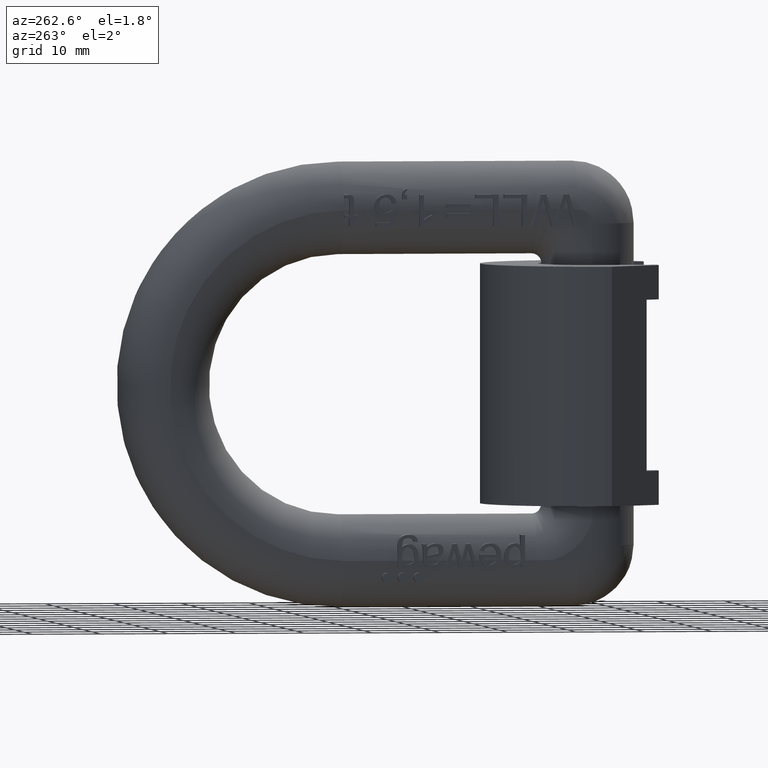
[diagram: clean part render]
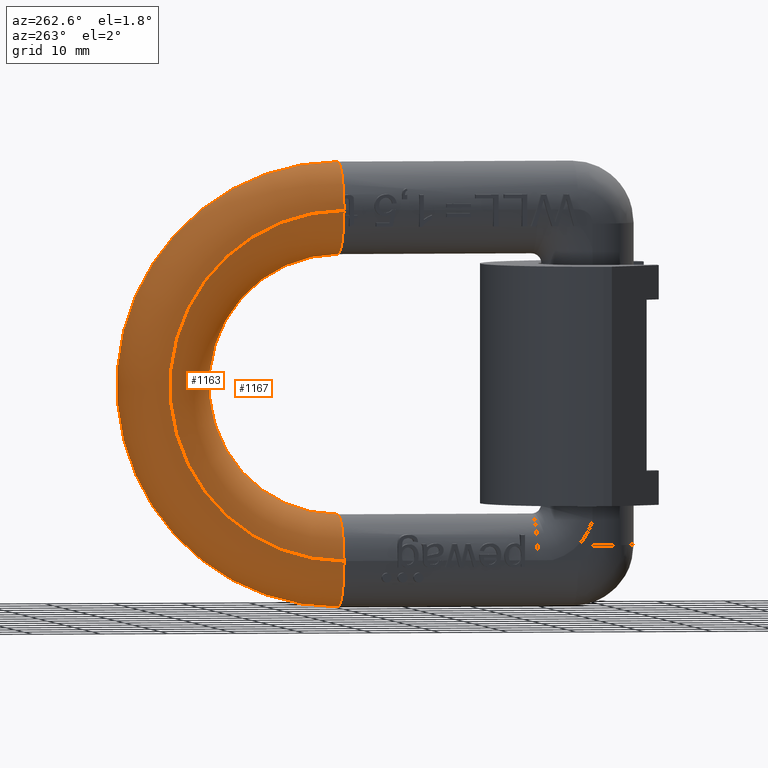
[diagram: same view with one multi-face feature highlighted, each face labeled with its STEP entity id]
A machine part, auxiliary view. The highlighted faces form ONE feature: a constant-radius fillet chain: 2 tangent blend faces with common blend radius 6.9 mm. The faces share edges in the B-rep.
Their STEP definitions:
[1] entity #1163 (Torus):
#226=TOROIDAL_SURFACE('',#9035,25.6,6.9);
#1163=ADVANCED_FACE('',(#1869),#226,.T.);
#1869=FACE_OUTER_BOUND('',#2328,.T.);
#2328=EDGE_LOOP('',(#3284,#3285,#3286,#3287,#3288));
#2783=CIRCLE('',#8950,32.5);
#2795=CIRCLE('',#8977,6.9);
#2810=CIRCLE('',#9002,6.9);
#2820=CIRCLE('',#9033,25.6);
#2821=CIRCLE('',#9034,6.9);
#3284=ORIENTED_EDGE('',*,*,#6588,.T.);
#3285=ORIENTED_EDGE('',*,*,#6659,.F.);
#3286=ORIENTED_EDGE('',*,*,#6660,.F.);
#3287=ORIENTED_EDGE('',*,*,#6509,.F.);
#3288=ORIENTED_EDGE('',*,*,#6460,.F.);
#5573=VERTEX_POINT('',#11301);
#5575=VERTEX_POINT('',#11307);
#5612=VERTEX_POINT('',#11502);
#5689=VERTEX_POINT('',#11995);
#5745=VERTEX_POINT('',#12619);
#6460=EDGE_CURVE('',#5575,#5573,#2783,.T.);
#6509=EDGE_CURVE('',#5573,#5612,#2795,.T.);
#6588=EDGE_CURVE('',#5575,#5689,#2810,.T.);
#6659=EDGE_CURVE('',#5745,#5689,#2820,.T.);
#6660=EDGE_CURVE('',#5612,#5745,#2821,.T.);
#8950=AXIS2_PLACEMENT_3D('',#11308,#9564,#9565);
#8977=AXIS2_PLACEMENT_3D('',#11501,#9631,#9632);
#9002=AXIS2_PLACEMENT_3D('',#11996,#9708,#9709);
#9033=AXIS2_PLACEMENT_3D('',#12618,#9782,#9783);
#9034=AXIS2_PLACEMENT_3D('',#12620,#9784,#9785);
#9035=AXIS2_PLACEMENT_3D('',#12621,#9786,#9787);
#9564=DIRECTION('',(1.,0.,0.));
#9565=DIRECTION('',(0.,0.,1.));
#9631=DIRECTION('',(0.,-1.,0.));
#9632=DIRECTION('',(0.,0.,-1.));
#9708=DIRECTION('',(0.,1.,0.));
#9709=DIRECTION('',(0.,0.,1.));
#9782=DIRECTION('',(-1.,0.,0.));
#9783=DIRECTION('',(0.,0.,1.));
#9784=DIRECTION('',(0.,-1.,0.));
#9785=DIRECTION('',(0.,0.,-1.));
#9786=DIRECTION('',(-1.,0.,0.));
#9787=DIRECTION('',(0.,0.,1.));
#11301=CARTESIAN_POINT('',(-0.0999999999999994,46.,32.5));
#11307=CARTESIAN_POINT('',(-0.0999999999999994,46.,-32.5));
#11308=CARTESIAN_POINT('',(-0.0999999999999994,46.,0.));
#11501=CARTESIAN_POINT('',(-0.0999999999999994,46.,25.6));
#11502=CARTESIAN_POINT('',(-6.63060860184211,46.,27.8273642022682));
#11995=CARTESIAN_POINT('',(-7.,46.,-25.6));
#11996=CARTESIAN_POINT('',(-0.0999999999999994,46.,-25.6));
#12618=CARTESIAN_POINT('',(-7.,46.,0.));
#12619=CARTESIAN_POINT('',(-7.,46.,25.6));
#12620=CARTESIAN_POINT('',(-0.0999999999999994,46.,25.6));
#12621=CARTESIAN_POINT('',(-0.0999999999999994,46.,0.));
[2] entity #1167 (Torus):
#227=TOROIDAL_SURFACE('',#9041,25.9,6.9);
#1167=ADVANCED_FACE('',(#1873),#227,.T.);
#1873=FACE_OUTER_BOUND('',#2332,.T.);
#2332=EDGE_LOOP('',(#3308,#3309,#3310,#3311));
#2779=CIRCLE('',#8941,19.);
#2814=CIRCLE('',#9013,6.9);
#2820=CIRCLE('',#9033,25.6);
#2823=CIRCLE('',#9040,6.9);
#3308=ORIENTED_EDGE('',*,*,#6606,.F.);
#3309=ORIENTED_EDGE('',*,*,#6444,.F.);
#3310=ORIENTED_EDGE('',*,*,#6671,.F.);
#3311=ORIENTED_EDGE('',*,*,#6659,.T.);
#5561=VERTEX_POINT('',#11268);
#5563=VERTEX_POINT('',#11274);
#5689=VERTEX_POINT('',#11995);
#5745=VERTEX_POINT('',#12619);
#6444=EDGE_CURVE('',#5563,#5561,#2779,.T.);
#6606=EDGE_CURVE('',#5561,#5689,#2814,.T.);
#6659=EDGE_CURVE('',#5745,#5689,#2820,.T.);
#6671=EDGE_CURVE('',#5745,#5563,#2823,.T.);
#8941=AXIS2_PLACEMENT_3D('',#11275,#9534,#9535);
#9013=AXIS2_PLACEMENT_3D('',#12193,#9734,#9735);
#9033=AXIS2_PLACEMENT_3D('',#12618,#9782,#9783);
#9040=AXIS2_PLACEMENT_3D('',#12693,#9800,#9801);
#9041=AXIS2_PLACEMENT_3D('',#12694,#9802,#9803);
#9534=DIRECTION('',(-1.,0.,0.));
#9535=DIRECTION('',(0.,0.,1.));
#9734=DIRECTION('',(0.,-1.,0.));
#9735=DIRECTION('',(0.,0.,-1.));
#9782=DIRECTION('',(-1.,0.,0.));
#9783=DIRECTION('',(0.,0.,1.));
#9800=DIRECTION('',(-4.37647241201993E-17,-1.,1.00563679766771E-15));
#9801=DIRECTION('',(0.,-1.00563679766771E-15,-1.));
#9802=DIRECTION('',(-1.,0.,0.));
#9803=DIRECTION('',(0.,0.,1.));
#11268=CARTESIAN_POINT('',(-0.106524824154365,46.,-19.));
#11274=CARTESIAN_POINT('',(-0.106524824154365,46.,19.));
#11275=CARTESIAN_POINT('',(-0.106524824154365,46.,0.));
#11995=CARTESIAN_POINT('',(-7.,46.,-25.6));
#12193=CARTESIAN_POINT('',(-0.106524824154365,46.,-25.9));
#12618=CARTESIAN_POINT('',(-7.,46.,0.));
#12619=CARTESIAN_POINT('',(-7.,46.,25.6));
#12693=CARTESIAN_POINT('',(-0.106524824154366,46.,25.9));
#12694=CARTESIAN_POINT('',(-0.106524824154365,46.,0.));